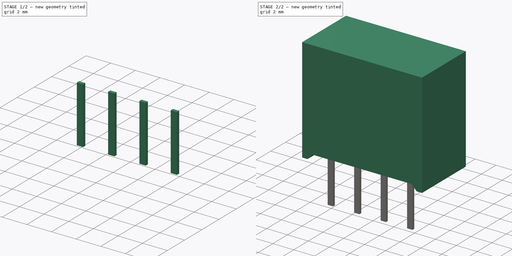
[diagram: build sequence overview — one tinted view per stage of 2, left to right]
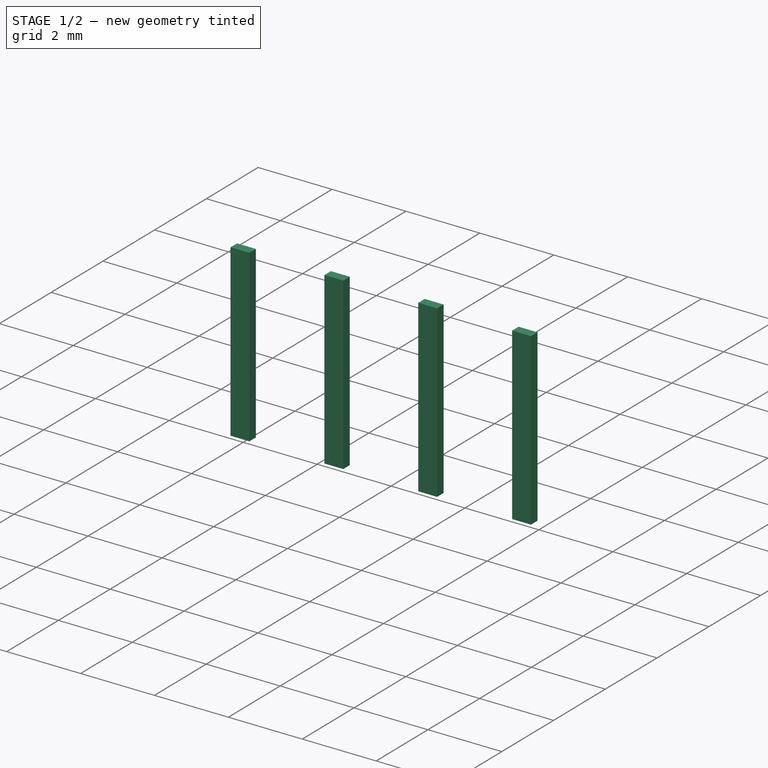
[diagram: stage 1 of 2 — iso view after this stage's code; geometry added in this stage tinted green]
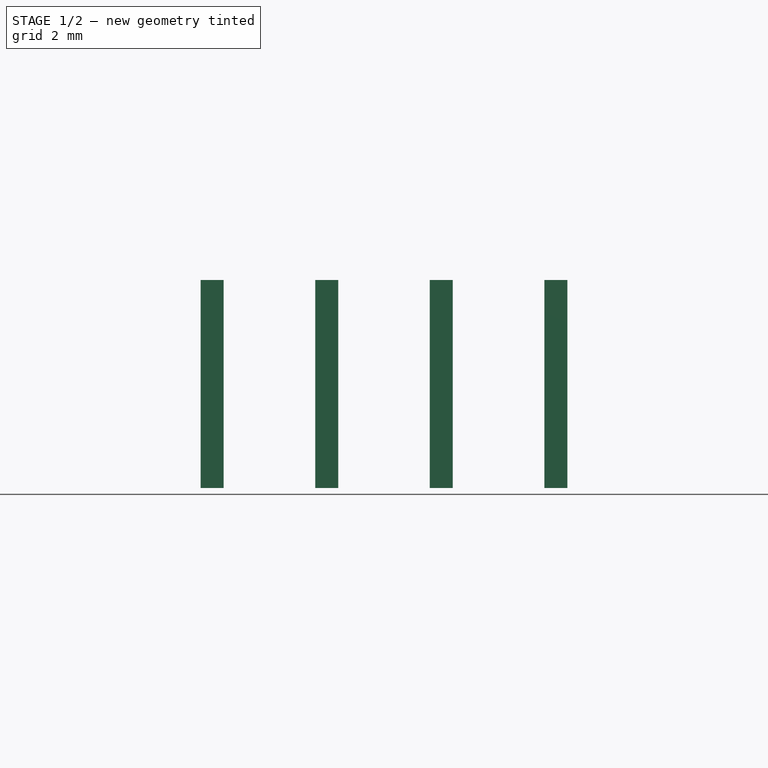
[diagram: stage 1 of 2 — front view after this stage's code; geometry added in this stage tinted green]
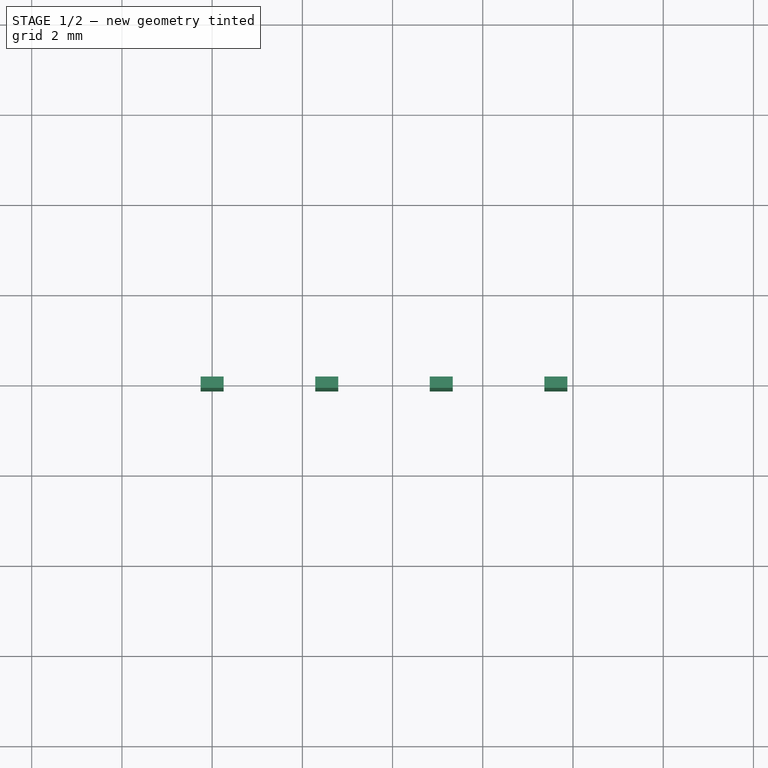
[diagram: stage 1 of 2 — top view after this stage's code; geometry added in this stage tinted green]
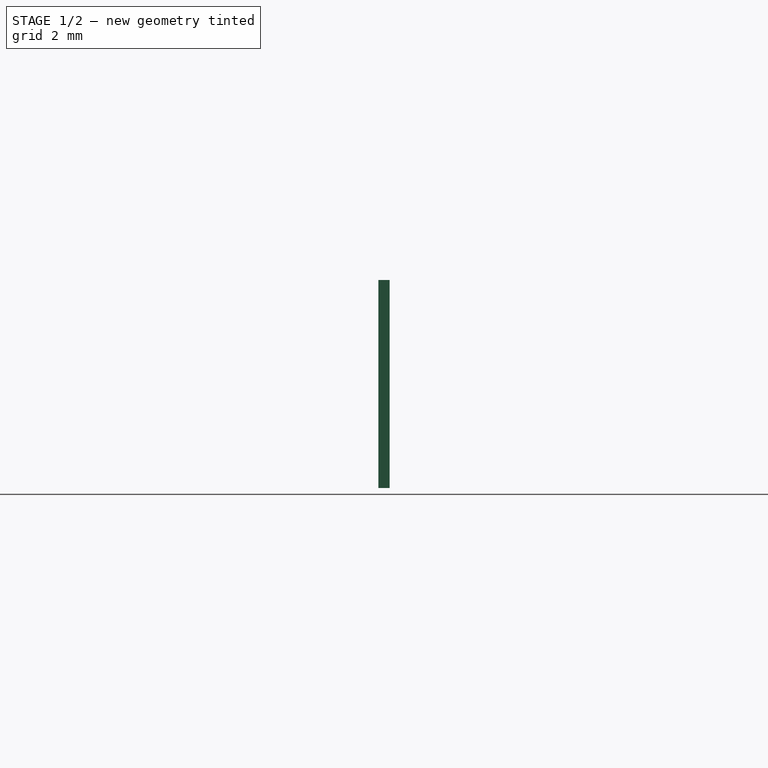
[diagram: stage 1 of 2 — right view after this stage's code; geometry added in this stage tinted green]
FCSTD DOCUMENT  (FreeCAD 1.0R38641 +468 (Git))
Label: RO-xxxxS
License: All rights reserved
LicenseURL: http://en.wikipedia.org/wiki/All_rights_reserved
objects: Sketcher::SketchObject×3, PartDesign::Pad×2, PartDesign::Body×2, PartDesign::Pocket×1, Part::FeaturePython×1
note: 18 computed .brp shape members not serialized (recipe doc carries the construction recipe); baked Part::Feature solids carry a one-line shape summary decoded from their .brp

FEATURE [PartDesign::Body] Body
  AllowCompound = false
  Group = -> [Sketch,Pad,Sketch001,Pocket]
  Origin = -> Origin
  Tip = -> Pocket
FEATURE [Sketcher::SketchObject] Sketch002
  ArcFitTolerance = 0
  AttachmentSupport = -> [XY_Plane001]
  FullyConstrained = true
  MakeInternals = false
  MapMode = 5
  sketch-geometry (4):
    g0: LineSegment StartX=-0.255 StartY=0.125 StartZ=0 EndX=0.255 EndY=0.125 EndZ=0
    g1: LineSegment StartX=0.255 StartY=0.125 StartZ=0 EndX=0.255 EndY=-0.125 EndZ=0
    g2: LineSegment StartX=0.255 StartY=-0.125 StartZ=0 EndX=-0.255 EndY=-0.125 EndZ=0
    g3: LineSegment StartX=-0.255 StartY=-0.125 StartZ=0 EndX=-0.255 EndY=0.125 EndZ=0
  constraints (11):
    c: Coincident(g0,g1)
    c: Coincident(g1,g2)
    c: Coincident(g2,g3)
    c: Coincident(g3,g0)
    c: Horizontal(g0)
    c: Horizontal(g2)
    c: Vertical(g1)
    c: Vertical(g3)
    c: DistanceX(g0,g0) = 0.51
    c: DistanceY(g1,g1) = 0.25
    c: Symmetric(g0,g1,g-1)
FEATURE [PartDesign::Pad] Pad001
  AllowMultiFace = false
  Direction = (0,0,1)
  Length = 0.51
  Length2 = 4.1
  Profile = -> Sketch002
  Suppressed = false
  Type = 4
FEATURE [PartDesign::Body] Body001
  AllowCompound = false
  Group = -> [Sketch002,Pad001]
  Origin = -> Origin001
  Tip = -> Pad001
FEATURE [Part::FeaturePython] Array  # Draft array (typed FeaturePython)
  Angle = 360
  ArrayType = 0
  Axis = (0,0,1)
  Base = -> Body001
  Center = (0,0,0)
  Count = 4
  Fuse = false
  IntervalAxis = (0,0,0)
  IntervalX = (2.54,0,0)
  IntervalY = (0,1,0)
  IntervalZ = (0,0,1)
  NumberPolar = 1
  NumberX = 4
  NumberY = 1
  NumberZ = 1
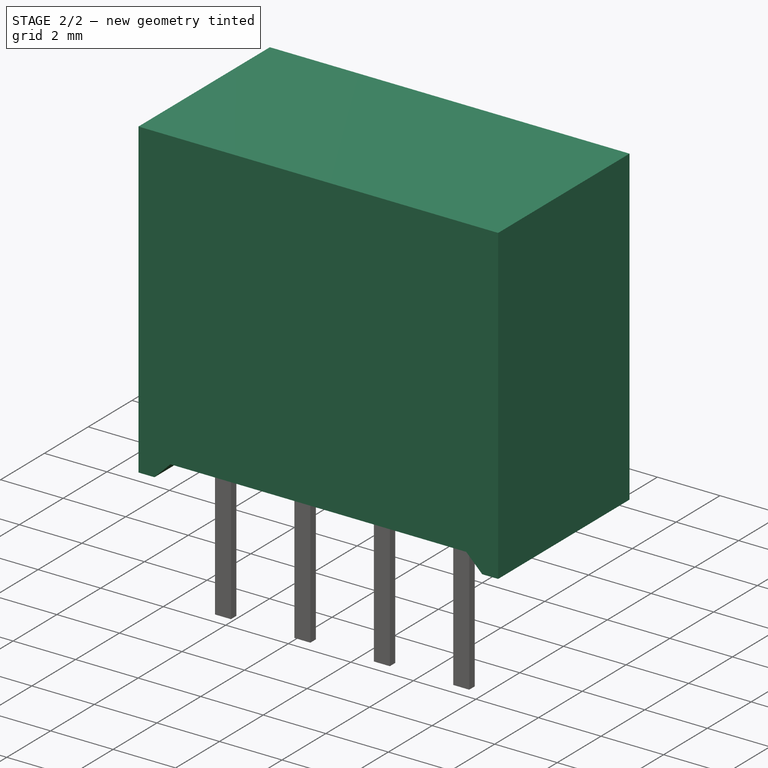
[diagram: stage 2 of 2 — iso view after this stage's code; geometry added in this stage tinted green]
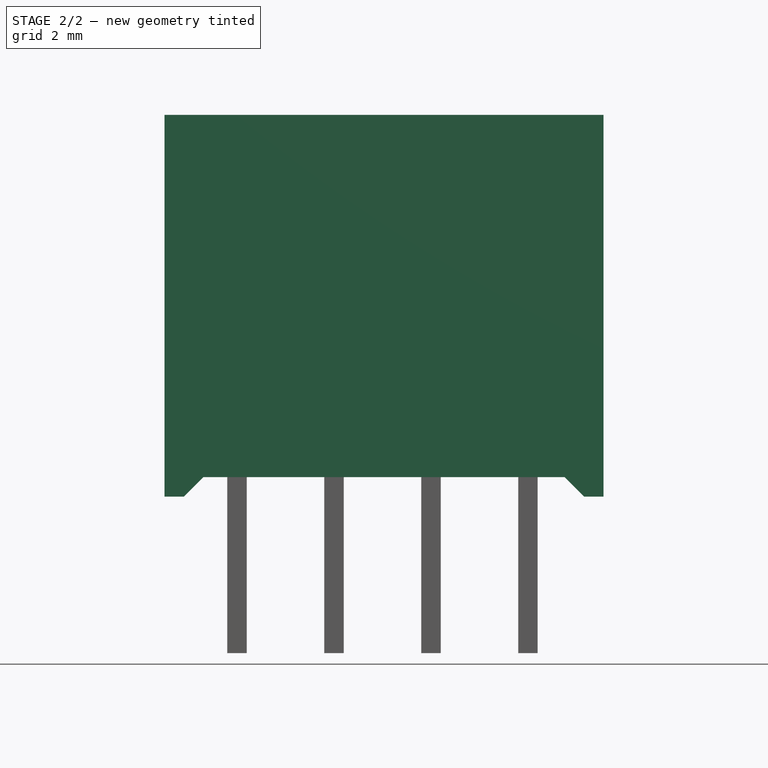
[diagram: stage 2 of 2 — front view after this stage's code; geometry added in this stage tinted green]
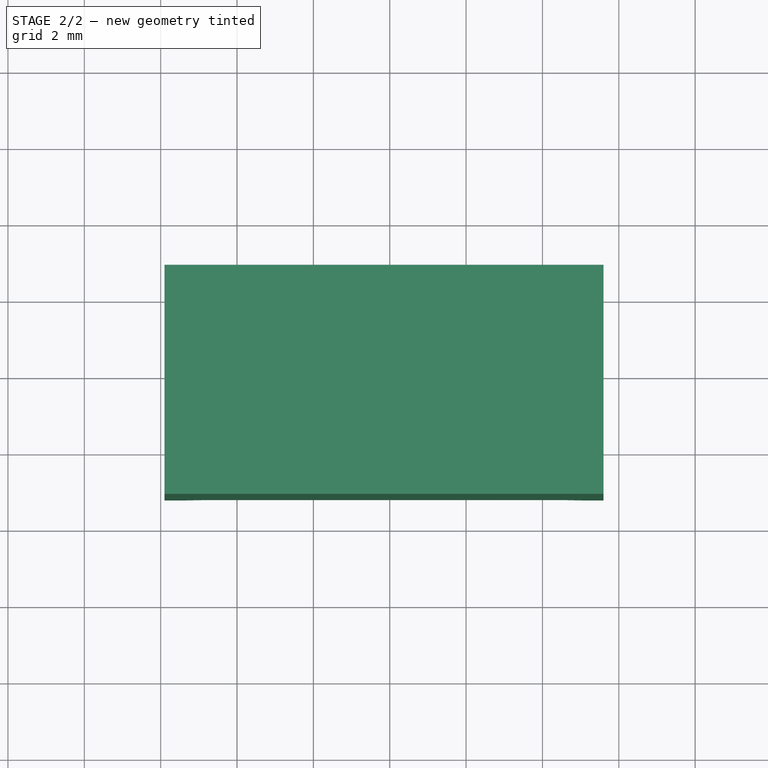
[diagram: stage 2 of 2 — top view after this stage's code; geometry added in this stage tinted green]
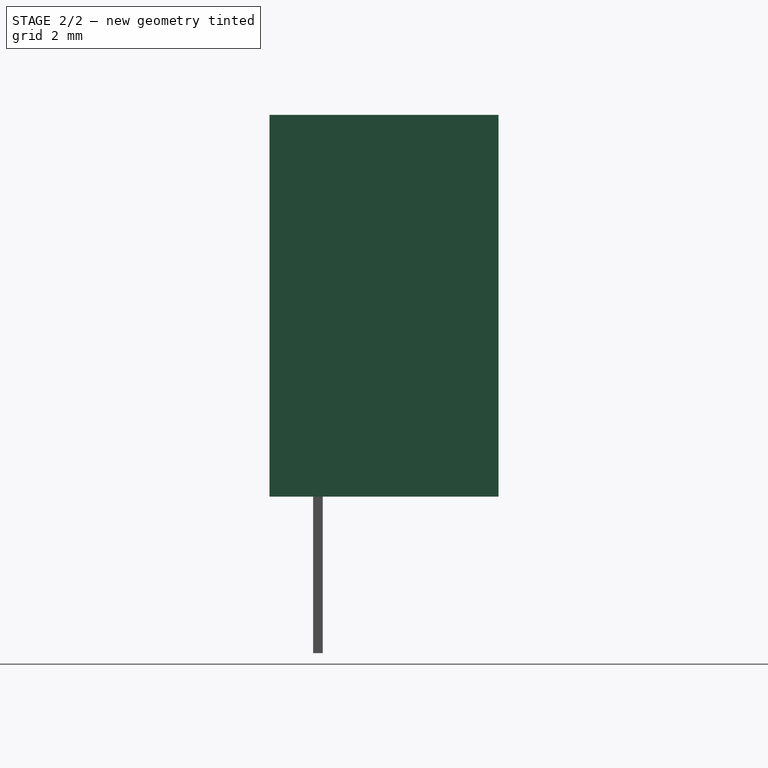
[diagram: stage 2 of 2 — right view after this stage's code; geometry added in this stage tinted green]
FEATURE [Sketcher::SketchObject] Sketch
  ArcFitTolerance = 0
  AttachmentSupport = -> [XY_Plane]
  FullyConstrained = true
  MakeInternals = false
  MapMode = 5
  sketch-geometry (4):
    g0: LineSegment StartX=-1.9 StartY=4.73 StartZ=0 EndX=9.6 EndY=4.73 EndZ=0
    g1: LineSegment StartX=9.6 StartY=4.73 StartZ=0 EndX=9.6 EndY=-1.27 EndZ=0
    g2: LineSegment StartX=9.6 StartY=-1.27 StartZ=0 EndX=-1.9 EndY=-1.27 EndZ=0
    g3: LineSegment StartX=-1.9 StartY=-1.27 StartZ=0 EndX=-1.9 EndY=4.73 EndZ=0
  constraints (12):
    c: Coincident(g0,g1)
    c: Coincident(g1,g2)
    c: Coincident(g2,g3)
    c: Coincident(g3,g0)
    c: Horizontal(g0)
    c: Horizontal(g2)
    c: Vertical(g1)
    c: Vertical(g3)
    c: DistanceX(g0,g0) = 11.5  'width'
    c: DistanceY(g1,g1) = 6  'depth'
    c: DistanceX(g2,g-1) = 1.9  'xcorner'
    c: DistanceY(g2,g-1) = 1.27  'ycorner'
FEATURE [PartDesign::Pad] Pad
  AllowMultiFace = false
  Direction = (0,0,1)
  Length = 10
  Length2 = 100
  Profile = -> Sketch
  Suppressed = false
  Type = 0
FEATURE [Sketcher::SketchObject] Sketch001
  ArcFitTolerance = 0
  AttachmentSupport = -> [XZ_Plane]
  FullyConstrained = true
  MakeInternals = false
  MapMode = 5
  Placement = pos=(0,0,0) rot=(1,0,0;1.5708rad)
  expr: Constraints[11] = Sketch.Constraints.width
  expr: Constraints[14] = Sketch.Constraints.xcorner
  sketch-geometry (8):
    g0: LineSegment StartX=-0.88 StartY=0.51 StartZ=0 EndX=-1.39 EndY=0 EndZ=0
    g1: LineSegment StartX=-1.39 StartY=0 StartZ=0 EndX=9.09 EndY=0 EndZ=0
    g2: LineSegment StartX=9.09 StartY=0 StartZ=0 EndX=8.58 EndY=0.51 EndZ=0
    g3: LineSegment StartX=8.58 StartY=0.51 StartZ=0 EndX=-0.88 EndY=0.51 EndZ=0
    g4: LineSegment [constr] StartX=-1.39 StartY=0 StartZ=0 EndX=-1.9 EndY=0 EndZ=0
    g5: LineSegment [constr] StartX=9.09 StartY=0 StartZ=0 EndX=9.6 EndY=0 EndZ=0
    g6: LineSegment [constr] StartX=-0.88 StartY=0.51 StartZ=0 EndX=-1.39 EndY=0.51 EndZ=0
    g7: LineSegment [constr] StartX=-1.39 StartY=0.51 StartZ=0 EndX=-1.39 EndY=0 EndZ=0
  constraints (23):
    c: PointOnObject(g0,g-1)
    c: Coincident(g0,g1)
    c: Horizontal(g1)
    c: Coincident(g1,g2)
    c: Coincident(g2,g3)
    c: Coincident(g3,g0)
    c: Horizontal(g3)
    c: PointOnObject(g4,g-1)
    c: Coincident(g5,g1)
    c: Horizontal(g5)
    c: Coincident(g4,g0)
    c: DistanceX(g4,g5) = 11.5
    c: Equal(g4,g5)
    c: DistanceX(g4,g4) = 0.51
    c: DistanceX(g4,g-1) = 1.9
    c: Equal(g0,g2)
    c: Coincident(g6,g0)
    c: Horizontal(g6)
    c: Coincident(g7,g6)
    c: Coincident(g7,g0)
    c: Vertical(g7)
    c: Equal(g4,g7)
    c: Equal(g7,g6)
FEATURE [PartDesign::Pocket] Pocket
  AllowMultiFace = false
  BaseFeature = -> Pad
  Direction = (0,1,-2e-16)
  Length = 5
  Length2 = 100
  Midplane = true
  Profile = -> Sketch001
  Suppressed = false
  Type = 1
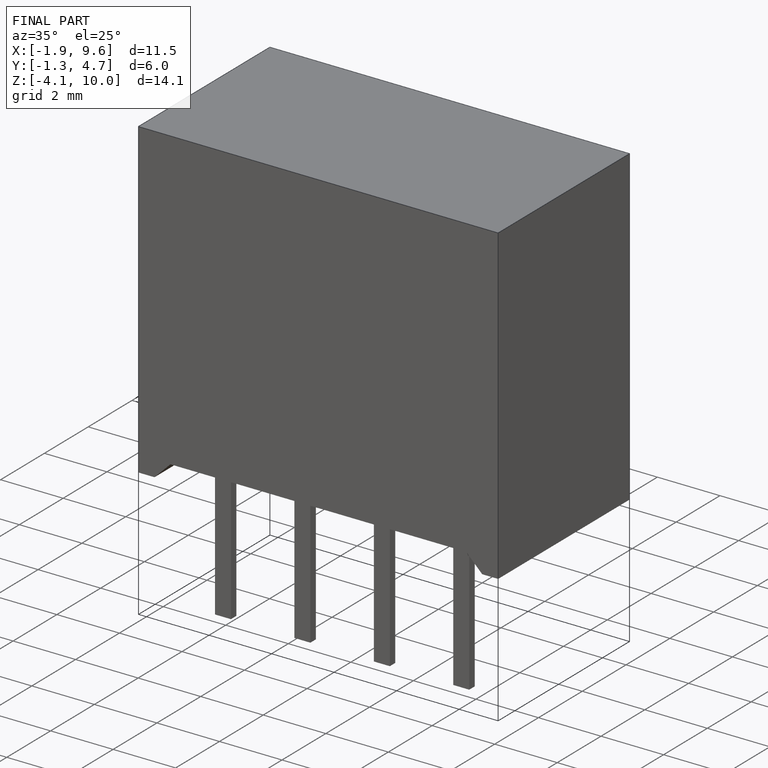
[diagram: finished part — iso view with bounding-box wireframe]
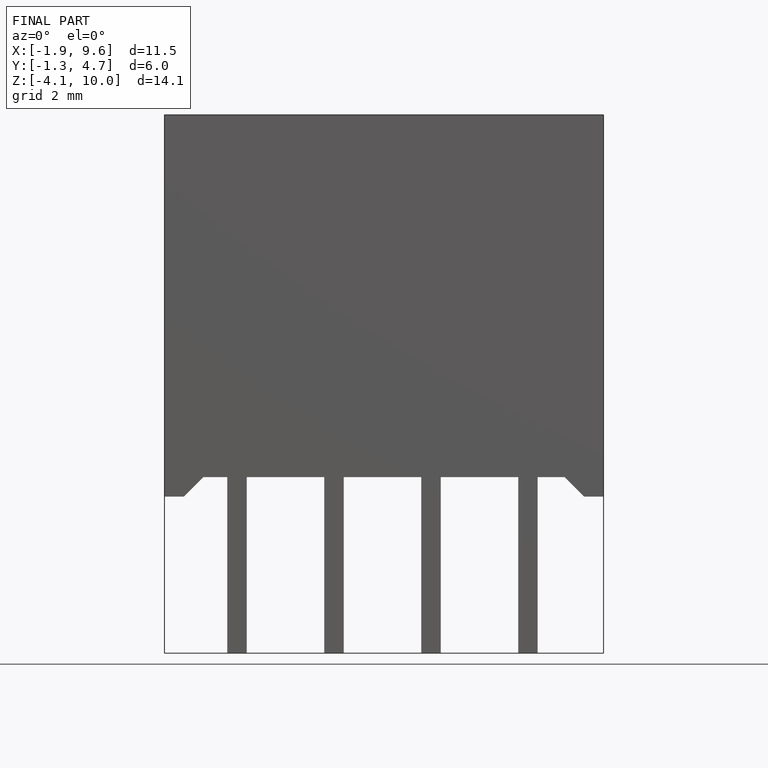
[diagram: finished part — front view with bounding-box wireframe]
